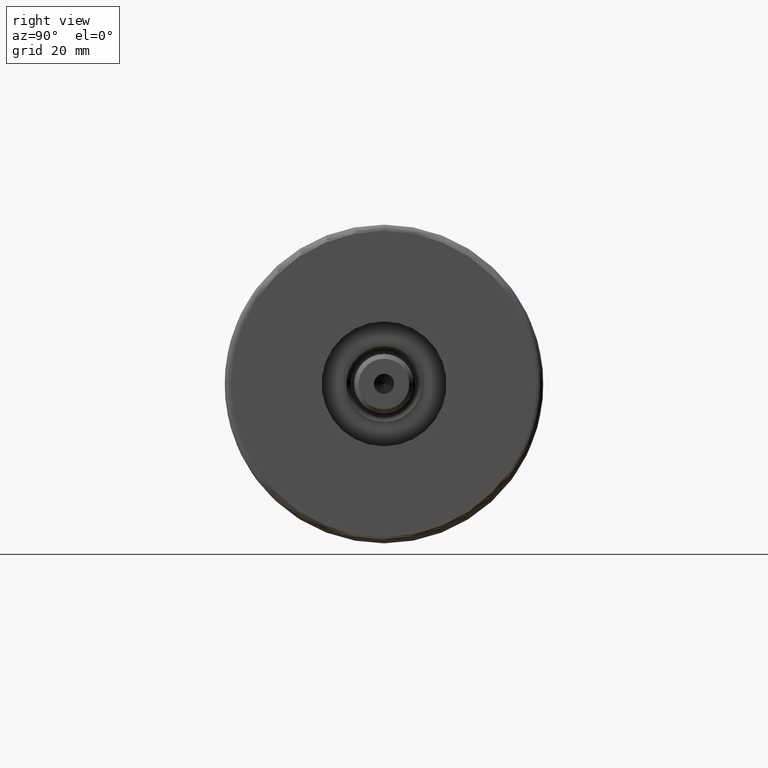
[diagram: clean part render]
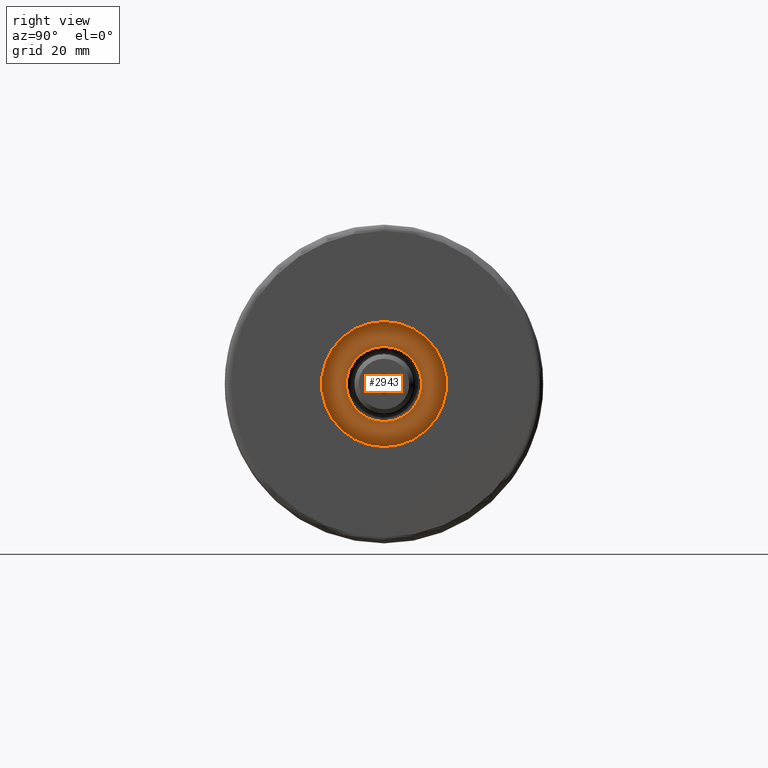
[diagram: same view with one face highlighted and labeled with its STEP entity id]
A machine part, right view. The second image highlights one B-rep face of the part: STEP entity #2943.
In plain terms, the highlighted planar face has unit normal (1, 0, -0).
Its self-contained STEP definition (entity closure, byte-faithful):
#83 = AXIS2_PLACEMENT_3D ( 'NONE', #1138, #3602, #350 ) ;
#205 = VERTEX_POINT ( 'NONE', #4538 ) ;
#350 = DIRECTION ( 'NONE',  ( 1.000000000000000000, 0.000000000000000000, -0.000000000000000000 ) ) ;
#369 = DIRECTION ( 'NONE',  ( 0.000000000000000000, 0.000000000000000000, 1.000000000000000000 ) ) ;
#453 = CIRCLE ( 'NONE', #3075, 12.05000000000000426 ) ;
#554 = ORIENTED_EDGE ( 'NONE', *, *, #4899, .T. ) ;
#720 = CARTESIAN_POINT ( 'NONE',  ( 0.000000000000000000, 0.000000000000000000, 33.50000000000000000 ) ) ;
#781 = EDGE_CURVE ( 'NONE', #2782, #205, #4755, .T. ) ;
#870 = CARTESIAN_POINT ( 'NONE',  ( 0.000000000000000000, 0.000000000000000000, 33.50000000000000000 ) ) ;
#875 = EDGE_CURVE ( 'NONE', #889, #1573, #2870, .T. ) ;
#889 = VERTEX_POINT ( 'NONE', #1155 ) ;
#1138 = CARTESIAN_POINT ( 'NONE',  ( 0.000000000000000000, 0.000000000000000000, 33.50000000000000000 ) ) ;
#1155 = CARTESIAN_POINT ( 'NONE',  ( -19.99999999999999645, 0.000000000000000000, 33.50000000000000000 ) ) ;
#1573 = VERTEX_POINT ( 'NONE', #4914 ) ;
#1796 = EDGE_CURVE ( 'NONE', #1573, #889, #2538, .T. ) ;
#1916 = FACE_BOUND ( 'NONE', #5057, .T. ) ;
#2095 = DIRECTION ( 'NONE',  ( 1.000000000000000000, 0.000000000000000000, 0.000000000000000000 ) ) ;
#2296 = CARTESIAN_POINT ( 'NONE',  ( 0.000000000000000000, 0.000000000000000000, 33.50000000000000000 ) ) ;
#2333 = PLANE ( 'NONE',  #83 ) ;
#2358 = CARTESIAN_POINT ( 'NONE',  ( 0.000000000000000000, 0.000000000000000000, 33.50000000000000000 ) ) ;
#2388 = FACE_OUTER_BOUND ( 'NONE', #5226, .T. ) ;
#2504 = DIRECTION ( 'NONE',  ( -0.000000000000000000, -0.000000000000000000, -1.000000000000000000 ) ) ;
#2516 = ORIENTED_EDGE ( 'NONE', *, *, #781, .T. ) ;
#2538 = CIRCLE ( 'NONE', #3452, 19.99999999999999645 ) ;
#2546 = AXIS2_PLACEMENT_3D ( 'NONE', #2296, #3506, #4259 ) ;
#2591 = CARTESIAN_POINT ( 'NONE',  ( -12.05000000000000426, 1.475699392972560823E-15, 33.50000000000000000 ) ) ;
#2737 = DIRECTION ( 'NONE',  ( 0.000000000000000000, 0.000000000000000000, 1.000000000000000000 ) ) ;
#2749 = ORIENTED_EDGE ( 'NONE', *, *, #1796, .T. ) ;
#2782 = VERTEX_POINT ( 'NONE', #2591 ) ;
#2870 = CIRCLE ( 'NONE', #4916, 19.99999999999999645 ) ;
#2943 = ADVANCED_FACE ( 'NONE', ( #1916, #2388 ), #2333, .T. ) ;
#3075 = AXIS2_PLACEMENT_3D ( 'NONE', #870, #2504, #2095 ) ;
#3217 = ORIENTED_EDGE ( 'NONE', *, *, #875, .T. ) ;
#3245 = DIRECTION ( 'NONE',  ( 1.000000000000000000, 0.000000000000000000, 0.000000000000000000 ) ) ;
#3452 = AXIS2_PLACEMENT_3D ( 'NONE', #2358, #2737, #3245 ) ;
#3506 = DIRECTION ( 'NONE',  ( -0.000000000000000000, -0.000000000000000000, -1.000000000000000000 ) ) ;
#3602 = DIRECTION ( 'NONE',  ( 0.000000000000000000, 0.000000000000000000, 1.000000000000000000 ) ) ;
#4021 = DIRECTION ( 'NONE',  ( 1.000000000000000000, 0.000000000000000000, 0.000000000000000000 ) ) ;
#4259 = DIRECTION ( 'NONE',  ( 1.000000000000000000, 0.000000000000000000, 0.000000000000000000 ) ) ;
#4538 = CARTESIAN_POINT ( 'NONE',  ( 12.05000000000000426, 0.000000000000000000, 33.50000000000000000 ) ) ;
#4755 = CIRCLE ( 'NONE', #2546, 12.05000000000000426 ) ;
#4899 = EDGE_CURVE ( 'NONE', #205, #2782, #453, .T. ) ;
#4914 = CARTESIAN_POINT ( 'NONE',  ( 19.99999999999999645, 2.449293598294706119E-15, 33.50000000000000000 ) ) ;
#4916 = AXIS2_PLACEMENT_3D ( 'NONE', #720, #369, #4021 ) ;
#5057 = EDGE_LOOP ( 'NONE', ( #554, #2516 ) ) ;
#5226 = EDGE_LOOP ( 'NONE', ( #3217, #2749 ) ) ;